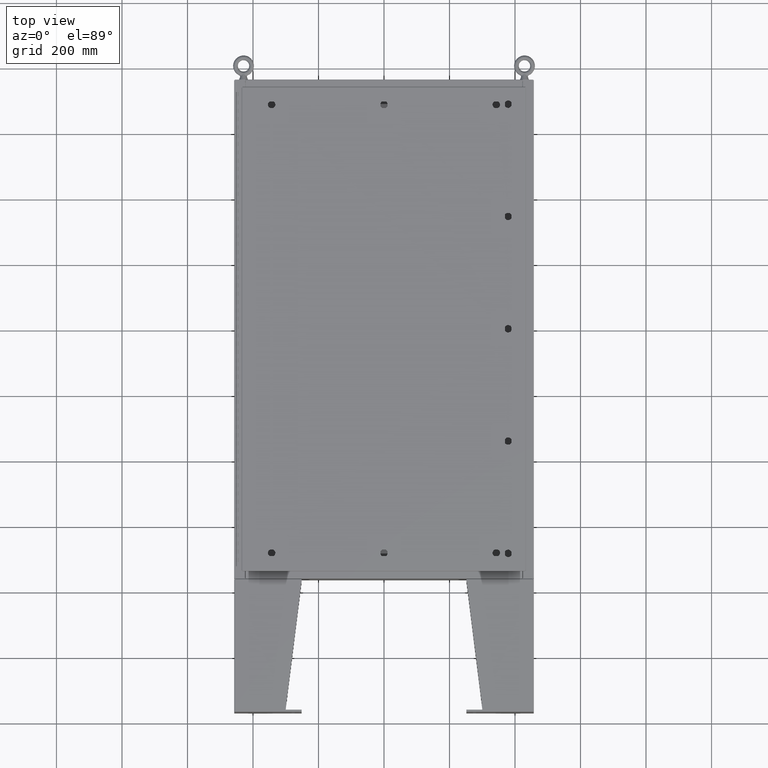
[diagram: clean part render]
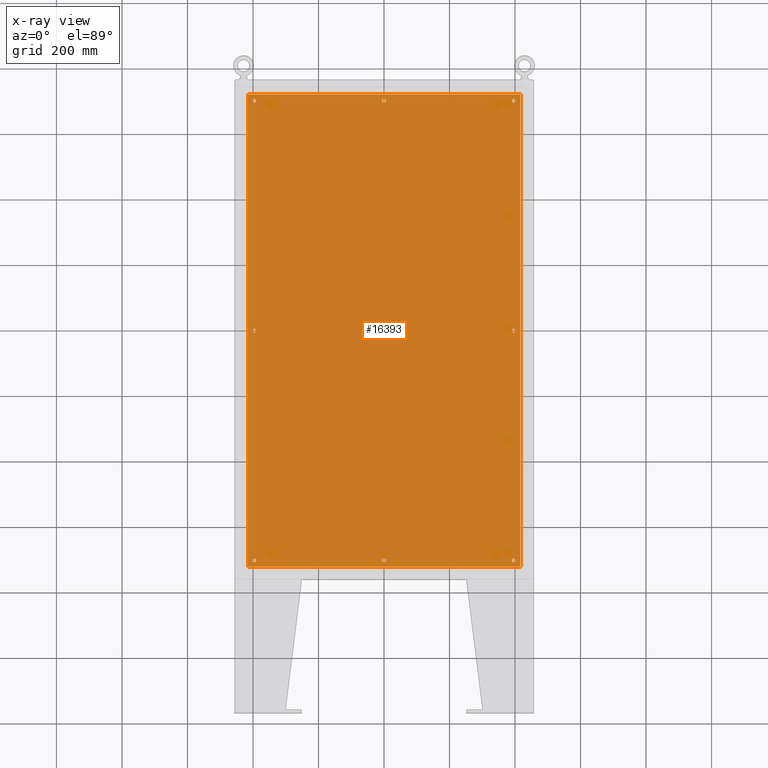
[diagram: x-ray — body ghosted, one internal face saturated and labeled with its STEP entity id]
A machine part, top view, then the same camera in x-ray: the body is ghosted and one INTERNAL B-rep face — a face not visible from any outside direction — is saturated and labeled: STEP entity #16393.
In plain terms, the highlighted planar face has unit normal (0, 0, -1).
Its self-contained STEP definition (entity closure, byte-faithful):
#662 = VECTOR ( 'NONE', #54191, 39.37007874015748100 ) ;
#672 = CARTESIAN_POINT ( 'NONE',  ( -15.62500000000000500, -8.298848852119578500E-016, -0.1039999999999999800 ) ) ;
#772 = ORIENTED_EDGE ( 'NONE', *, *, #24788, .T. ) ;
#809 = FACE_BOUND ( 'NONE', #51470, .T. ) ;
#816 = CARTESIAN_POINT ( 'NONE',  ( -15.62500000000001100, 27.62500000000000000, -0.1039999999999999800 ) ) ;
#1583 = DIRECTION ( 'NONE',  ( -0.0000000000000000000, -0.0000000000000000000, 1.000000000000000000 ) ) ;
#1635 = DIRECTION ( 'NONE',  ( -0.0000000000000000000, -0.0000000000000000000, 1.000000000000000000 ) ) ;
#2157 = CIRCLE ( 'NONE', #31022, 0.2500000000000008900 ) ;
#2828 = CIRCLE ( 'NONE', #59347, 0.2500000000000011700 ) ;
#3023 = EDGE_CURVE ( 'NONE', #16872, #14218, #12169, .T. ) ;
#3277 = CIRCLE ( 'NONE', #19943, 0.2499999999999998600 ) ;
#3540 = AXIS2_PLACEMENT_3D ( 'NONE', #45720, #16798, #50550 ) ;
#3827 = FACE_BOUND ( 'NONE', #6173, .T. ) ;
#4608 = CARTESIAN_POINT ( 'NONE',  ( 0.0000000000000000000, -27.62500000000000000, -0.1039999999999999800 ) ) ;
#4759 = DIRECTION ( 'NONE',  ( -1.000000000000000000, 0.0000000000000000000, 0.0000000000000000000 ) ) ;
#4900 = CARTESIAN_POINT ( 'NONE',  ( 16.50000000000000000, 28.38299999999999600, -0.1040000000000009400 ) ) ;
#4972 = ORIENTED_EDGE ( 'NONE', *, *, #23946, .T. ) ;
#5678 = DIRECTION ( 'NONE',  ( -1.000000000000000000, 0.0000000000000000000, 0.0000000000000000000 ) ) ;
#5688 = EDGE_CURVE ( 'NONE', #14273, #18177, #54907, .T. ) ;
#5845 = DIRECTION ( 'NONE',  ( -0.0000000000000000000, -0.0000000000000000000, 1.000000000000000000 ) ) ;
#6173 = EDGE_LOOP ( 'NONE', ( #15862, #31162 ) ) ;
#6723 = DIRECTION ( 'NONE',  ( -0.0000000000000000000, -0.0000000000000000000, 1.000000000000000000 ) ) ;
#7242 = CARTESIAN_POINT ( 'NONE',  ( 0.2500000000000011700, -27.62500000000000000, -0.1039999999999999800 ) ) ;
#7445 = CARTESIAN_POINT ( 'NONE',  ( -15.37500000000000900, 27.62500000000000000, -0.1039999999999999800 ) ) ;
#7605 = CARTESIAN_POINT ( 'NONE',  ( -15.87500000000000700, -27.62500000000000000, -0.1039999999999999800 ) ) ;
#7634 = CARTESIAN_POINT ( 'NONE',  ( -16.38299999999999900, -28.38300000000000600, -0.1040000000000009400 ) ) ;
#7797 = DIRECTION ( 'NONE',  ( -0.0000000000000000000, -0.0000000000000000000, 1.000000000000000000 ) ) ;
#8422 = ORIENTED_EDGE ( 'NONE', *, *, #23490, .F. ) ;
#8780 = CARTESIAN_POINT ( 'NONE',  ( -15.62500000000000900, -27.62500000000000000, -0.1039999999999999800 ) ) ;
#9344 = EDGE_CURVE ( 'NONE', #23143, #20246, #37283, .T. ) ;
#9752 = CARTESIAN_POINT ( 'NONE',  ( -15.62500000000000900, -27.62500000000000000, -0.1039999999999999800 ) ) ;
#9769 = DIRECTION ( 'NONE',  ( -1.000000000000000000, 0.0000000000000000000, 0.0000000000000000000 ) ) ;
#10150 = EDGE_LOOP ( 'NONE', ( #58895, #30513 ) ) ;
#10239 = CARTESIAN_POINT ( 'NONE',  ( 15.62500000000000900, 27.62500000000000000, -0.1039999999999999800 ) ) ;
#10624 = AXIS2_PLACEMENT_3D ( 'NONE', #30642, #1635, #35472 ) ;
#10870 = ORIENTED_EDGE ( 'NONE', *, *, #30177, .F. ) ;
#11026 = DIRECTION ( 'NONE',  ( 0.0000000000000000000, -1.000000000000000000, 0.0000000000000000000 ) ) ;
#11561 = VERTEX_POINT ( 'NONE', #11859 ) ;
#11589 = CARTESIAN_POINT ( 'NONE',  ( -0.2499999999999998600, 27.62500000000000000, -0.1039999999999999800 ) ) ;
#11644 = CIRCLE ( 'NONE', #18362, 0.2499999999999987000 ) ;
#11824 = EDGE_LOOP ( 'NONE', ( #43469, #8422, #50799, #10870 ) ) ;
#11859 = CARTESIAN_POINT ( 'NONE',  ( 15.87500000000000700, 2.997136362123522700E-015, -0.1039999999999999800 ) ) ;
#12169 = CIRCLE ( 'NONE', #35954, 0.2500000000000011700 ) ;
#12508 = DIRECTION ( 'NONE',  ( -0.0000000000000000000, -0.0000000000000000000, 1.000000000000000000 ) ) ;
#12732 = VERTEX_POINT ( 'NONE', #21962 ) ;
#13006 = VERTEX_POINT ( 'NONE', #11589 ) ;
#13181 = CARTESIAN_POINT ( 'NONE',  ( 15.62500000000000500, 2.997136362123522700E-015, -0.1039999999999999800 ) ) ;
#13670 = DIRECTION ( 'NONE',  ( -1.000000000000000000, 0.0000000000000000000, 0.0000000000000000000 ) ) ;
#13685 = FACE_BOUND ( 'NONE', #58583, .T. ) ;
#13781 = AXIS2_PLACEMENT_3D ( 'NONE', #816, #34664, #5678 ) ;
#14218 = VERTEX_POINT ( 'NONE', #7242 ) ;
#14273 = VERTEX_POINT ( 'NONE', #7605 ) ;
#14385 = DIRECTION ( 'NONE',  ( -1.000000000000000000, 0.0000000000000000000, 0.0000000000000000000 ) ) ;
#14661 = DIRECTION ( 'NONE',  ( -1.000000000000000000, 0.0000000000000000000, 0.0000000000000000000 ) ) ;
#15075 = VERTEX_POINT ( 'NONE', #17116 ) ;
#15134 = DIRECTION ( 'NONE',  ( -1.000000000000000000, 0.0000000000000000000, 0.0000000000000000000 ) ) ;
#15862 = ORIENTED_EDGE ( 'NONE', *, *, #54398, .T. ) ;
#16025 = EDGE_LOOP ( 'NONE', ( #32968, #51557 ) ) ;
#16393 = ADVANCED_FACE ( 'NONE', ( #52220, #28064, #53750, #3827, #39387, #26542, #13685, #809, #50723 ), #54057, .T. ) ;
#16798 = DIRECTION ( 'NONE',  ( -0.0000000000000000000, -0.0000000000000000000, 1.000000000000000000 ) ) ;
#16872 = VERTEX_POINT ( 'NONE', #61638 ) ;
#17116 = CARTESIAN_POINT ( 'NONE',  ( 15.87500000000000700, -27.62500000000000000, -0.1039999999999999800 ) ) ;
#17141 = DIRECTION ( 'NONE',  ( -0.0000000000000000000, -0.0000000000000000000, 1.000000000000000000 ) ) ;
#18061 = DIRECTION ( 'NONE',  ( -1.000000000000000000, 0.0000000000000000000, 0.0000000000000000000 ) ) ;
#18177 = VERTEX_POINT ( 'NONE', #22009 ) ;
#18362 = AXIS2_PLACEMENT_3D ( 'NONE', #46354, #22953, #51867 ) ;
#18451 = EDGE_CURVE ( 'NONE', #14218, #16872, #2828, .T. ) ;
#19484 = EDGE_CURVE ( 'NONE', #21623, #33466, #54366, .T. ) ;
#19740 = EDGE_CURVE ( 'NONE', #37278, #12732, #52052, .T. ) ;
#19943 = AXIS2_PLACEMENT_3D ( 'NONE', #22737, #7797, #58561 ) ;
#20246 = VERTEX_POINT ( 'NONE', #49715 ) ;
#20460 = CARTESIAN_POINT ( 'NONE',  ( 16.38299999999999900, -28.38300000000000600, -0.1040000000000009100 ) ) ;
#21623 = VERTEX_POINT ( 'NONE', #62081 ) ;
#21962 = CARTESIAN_POINT ( 'NONE',  ( -16.38299999999999900, 28.38299999999998800, -0.1040000000000009100 ) ) ;
#22009 = CARTESIAN_POINT ( 'NONE',  ( -15.37500000000000900, -27.62500000000000000, -0.1039999999999999800 ) ) ;
#22341 = EDGE_LOOP ( 'NONE', ( #44960, #59940 ) ) ;
#22737 = CARTESIAN_POINT ( 'NONE',  ( 0.0000000000000000000, 27.62500000000000000, -0.1039999999999999800 ) ) ;
#22953 = DIRECTION ( 'NONE',  ( -0.0000000000000000000, -0.0000000000000000000, 1.000000000000000000 ) ) ;
#23143 = VERTEX_POINT ( 'NONE', #58355 ) ;
#23490 = EDGE_CURVE ( 'NONE', #12732, #28458, #59331, .T. ) ;
#23946 = EDGE_CURVE ( 'NONE', #13006, #53177, #3277, .T. ) ;
#24631 = VERTEX_POINT ( 'NONE', #7445 ) ;
#24788 = EDGE_CURVE ( 'NONE', #20246, #23143, #11644, .T. ) ;
#24854 = VERTEX_POINT ( 'NONE', #41573 ) ;
#25272 = AXIS2_PLACEMENT_3D ( 'NONE', #10239, #44072, #15134 ) ;
#25893 = CARTESIAN_POINT ( 'NONE',  ( 0.0000000000000000000, 0.0000000000000000000, -0.1039999999999999800 ) ) ;
#26542 = FACE_BOUND ( 'NONE', #22341, .T. ) ;
#26593 = DIRECTION ( 'NONE',  ( -0.0000000000000000000, -0.0000000000000000000, 1.000000000000000000 ) ) ;
#26849 = CIRCLE ( 'NONE', #33154, 0.2500000000000008900 ) ;
#27877 = CARTESIAN_POINT ( 'NONE',  ( 15.37500000000000500, 3.027752532102206500E-015, -0.1039999999999999800 ) ) ;
#28064 = FACE_BOUND ( 'NONE', #62321, .T. ) ;
#28458 = VERTEX_POINT ( 'NONE', #7634 ) ;
#29124 = DIRECTION ( 'NONE',  ( 0.0000000000000000000, 0.0000000000000000000, -1.000000000000000000 ) ) ;
#30177 = EDGE_CURVE ( 'NONE', #38396, #37278, #45602, .T. ) ;
#30513 = ORIENTED_EDGE ( 'NONE', *, *, #5688, .T. ) ;
#30642 = CARTESIAN_POINT ( 'NONE',  ( 15.62500000000000900, -27.62500000000000000, -0.1039999999999999800 ) ) ;
#31022 = AXIS2_PLACEMENT_3D ( 'NONE', #13181, #46953, #18061 ) ;
#31111 = AXIS2_PLACEMENT_3D ( 'NONE', #9752, #43599, #14661 ) ;
#31162 = ORIENTED_EDGE ( 'NONE', *, *, #19484, .T. ) ;
#31387 = EDGE_LOOP ( 'NONE', ( #41790, #42724 ) ) ;
#31486 = CARTESIAN_POINT ( 'NONE',  ( 16.38299999999999900, 28.38299999999998800, -0.1040000000000009100 ) ) ;
#32119 = VECTOR ( 'NONE', #11026, 39.37007874015748100 ) ;
#32649 = EDGE_CURVE ( 'NONE', #11561, #40517, #2157, .T. ) ;
#32724 = VECTOR ( 'NONE', #35057, 39.37007874015748100 ) ;
#32968 = ORIENTED_EDGE ( 'NONE', *, *, #32649, .T. ) ;
#33154 = AXIS2_PLACEMENT_3D ( 'NONE', #46060, #17141, #50894 ) ;
#33327 = AXIS2_PLACEMENT_3D ( 'NONE', #25893, #29124, #42775 ) ;
#33349 = ORIENTED_EDGE ( 'NONE', *, *, #38580, .T. ) ;
#33466 = VERTEX_POINT ( 'NONE', #40350 ) ;
#33897 = AXIS2_PLACEMENT_3D ( 'NONE', #672, #1583, #9769 ) ;
#34458 = EDGE_CURVE ( 'NONE', #18177, #14273, #44416, .T. ) ;
#34664 = DIRECTION ( 'NONE',  ( -0.0000000000000000000, -0.0000000000000000000, 1.000000000000000000 ) ) ;
#34827 = CARTESIAN_POINT ( 'NONE',  ( 0.0000000000000000000, 27.62500000000000000, -0.1039999999999999800 ) ) ;
#34938 = CIRCLE ( 'NONE', #10624, 0.2499999999999987000 ) ;
#35057 = DIRECTION ( 'NONE',  ( 0.0000000000000000000, 1.000000000000000000, 0.0000000000000000000 ) ) ;
#35472 = DIRECTION ( 'NONE',  ( -1.000000000000000000, 0.0000000000000000000, 0.0000000000000000000 ) ) ;
#35701 = CARTESIAN_POINT ( 'NONE',  ( -15.62500000000001100, 27.62500000000000000, -0.1039999999999999800 ) ) ;
#35954 = AXIS2_PLACEMENT_3D ( 'NONE', #4608, #38442, #14385 ) ;
#37027 = EDGE_CURVE ( 'NONE', #24854, #24631, #37727, .T. ) ;
#37188 = EDGE_CURVE ( 'NONE', #24631, #24854, #43023, .T. ) ;
#37278 = VERTEX_POINT ( 'NONE', #31486 ) ;
#37283 = CIRCLE ( 'NONE', #25272, 0.2499999999999987000 ) ;
#37654 = CARTESIAN_POINT ( 'NONE',  ( 15.37500000000000900, -27.62500000000000000, -0.1039999999999999800 ) ) ;
#37727 = CIRCLE ( 'NONE', #13781, 0.2500000000000008900 ) ;
#37731 = AXIS2_PLACEMENT_3D ( 'NONE', #34827, #5845, #39690 ) ;
#38396 = VERTEX_POINT ( 'NONE', #47502 ) ;
#38442 = DIRECTION ( 'NONE',  ( -0.0000000000000000000, -0.0000000000000000000, 1.000000000000000000 ) ) ;
#38580 = EDGE_CURVE ( 'NONE', #53177, #13006, #50478, .T. ) ;
#39302 = LINE ( 'NONE', #41595, #49110 ) ;
#39387 = FACE_BOUND ( 'NONE', #10150, .T. ) ;
#39690 = DIRECTION ( 'NONE',  ( -1.000000000000000000, 0.0000000000000000000, 0.0000000000000000000 ) ) ;
#40295 = AXIS2_PLACEMENT_3D ( 'NONE', #55534, #26593, #60380 ) ;
#40350 = CARTESIAN_POINT ( 'NONE',  ( -15.37500000000000500, -8.298848852119578500E-016, -0.1039999999999999800 ) ) ;
#40517 = VERTEX_POINT ( 'NONE', #27877 ) ;
#40578 = DIRECTION ( 'NONE',  ( -1.000000000000000000, 0.0000000000000000000, 0.0000000000000000000 ) ) ;
#41573 = CARTESIAN_POINT ( 'NONE',  ( -15.87500000000001100, 27.62500000000000000, -0.1039999999999999800 ) ) ;
#41595 = CARTESIAN_POINT ( 'NONE',  ( -16.50000000000000000, -28.38300000000000600, -0.1040000000000009400 ) ) ;
#41790 = ORIENTED_EDGE ( 'NONE', *, *, #18451, .T. ) ;
#42633 = DIRECTION ( 'NONE',  ( -0.0000000000000000000, -0.0000000000000000000, 1.000000000000000000 ) ) ;
#42724 = ORIENTED_EDGE ( 'NONE', *, *, #3023, .T. ) ;
#42775 = DIRECTION ( 'NONE',  ( -1.000000000000000000, 0.0000000000000000000, -0.0000000000000000000 ) ) ;
#43023 = CIRCLE ( 'NONE', #49397, 0.2500000000000008900 ) ;
#43353 = AXIS2_PLACEMENT_3D ( 'NONE', #8780, #42633, #13670 ) ;
#43469 = ORIENTED_EDGE ( 'NONE', *, *, #60311, .F. ) ;
#43599 = DIRECTION ( 'NONE',  ( -0.0000000000000000000, -0.0000000000000000000, 1.000000000000000000 ) ) ;
#44012 = EDGE_CURVE ( 'NONE', #47760, #15075, #47265, .T. ) ;
#44072 = DIRECTION ( 'NONE',  ( -0.0000000000000000000, -0.0000000000000000000, 1.000000000000000000 ) ) ;
#44416 = CIRCLE ( 'NONE', #31111, 0.2499999999999987000 ) ;
#44960 = ORIENTED_EDGE ( 'NONE', *, *, #46925, .T. ) ;
#45602 = LINE ( 'NONE', #20460, #32724 ) ;
#45720 = CARTESIAN_POINT ( 'NONE',  ( 15.62500000000000900, -27.62500000000000000, -0.1039999999999999800 ) ) ;
#46060 = CARTESIAN_POINT ( 'NONE',  ( -15.62500000000000500, -8.298848852119578500E-016, -0.1039999999999999800 ) ) ;
#46354 = CARTESIAN_POINT ( 'NONE',  ( 15.62500000000000900, 27.62500000000000000, -0.1039999999999999800 ) ) ;
#46454 = DIRECTION ( 'NONE',  ( 1.000000000000000000, -0.0000000000000000000, -0.0000000000000000000 ) ) ;
#46925 = EDGE_CURVE ( 'NONE', #15075, #47760, #34938, .T. ) ;
#46953 = DIRECTION ( 'NONE',  ( -0.0000000000000000000, -0.0000000000000000000, 1.000000000000000000 ) ) ;
#47265 = CIRCLE ( 'NONE', #3540, 0.2499999999999987000 ) ;
#47502 = CARTESIAN_POINT ( 'NONE',  ( 16.38299999999999900, -28.38300000000000600, -0.1040000000000009100 ) ) ;
#47760 = VERTEX_POINT ( 'NONE', #37654 ) ;
#49110 = VECTOR ( 'NONE', #46454, 39.37007874015748100 ) ;
#49397 = AXIS2_PLACEMENT_3D ( 'NONE', #35701, #6723, #40578 ) ;
#49715 = CARTESIAN_POINT ( 'NONE',  ( 15.37500000000000900, 27.62500000000000000, -0.1039999999999999800 ) ) ;
#49767 = ORIENTED_EDGE ( 'NONE', *, *, #9344, .T. ) ;
#49841 = CARTESIAN_POINT ( 'NONE',  ( -16.38299999999999900, 28.38299999999998800, -0.1040000000000009100 ) ) ;
#50478 = CIRCLE ( 'NONE', #37731, 0.2499999999999998600 ) ;
#50550 = DIRECTION ( 'NONE',  ( -1.000000000000000000, 0.0000000000000000000, 0.0000000000000000000 ) ) ;
#50723 = FACE_OUTER_BOUND ( 'NONE', #11824, .T. ) ;
#50799 = ORIENTED_EDGE ( 'NONE', *, *, #19740, .F. ) ;
#50894 = DIRECTION ( 'NONE',  ( -1.000000000000000000, 0.0000000000000000000, 0.0000000000000000000 ) ) ;
#51470 = EDGE_LOOP ( 'NONE', ( #59639, #56646 ) ) ;
#51557 = ORIENTED_EDGE ( 'NONE', *, *, #60227, .T. ) ;
#51867 = DIRECTION ( 'NONE',  ( -1.000000000000000000, 0.0000000000000000000, 0.0000000000000000000 ) ) ;
#52052 = LINE ( 'NONE', #4900, #662 ) ;
#52220 = FACE_BOUND ( 'NONE', #31387, .T. ) ;
#53177 = VERTEX_POINT ( 'NONE', #57570 ) ;
#53668 = CIRCLE ( 'NONE', #40295, 0.2500000000000008900 ) ;
#53750 = FACE_BOUND ( 'NONE', #16025, .T. ) ;
#54057 = PLANE ( 'NONE',  #33327 ) ;
#54191 = DIRECTION ( 'NONE',  ( -1.000000000000000000, -0.0000000000000000000, -0.0000000000000000000 ) ) ;
#54366 = CIRCLE ( 'NONE', #33897, 0.2500000000000008900 ) ;
#54398 = EDGE_CURVE ( 'NONE', #33466, #21623, #26849, .T. ) ;
#54907 = CIRCLE ( 'NONE', #43353, 0.2499999999999987000 ) ;
#55534 = CARTESIAN_POINT ( 'NONE',  ( 15.62500000000000500, 2.997136362123522700E-015, -0.1039999999999999800 ) ) ;
#56646 = ORIENTED_EDGE ( 'NONE', *, *, #37027, .T. ) ;
#57126 = CARTESIAN_POINT ( 'NONE',  ( 0.0000000000000000000, -27.62500000000000000, -0.1039999999999999800 ) ) ;
#57570 = CARTESIAN_POINT ( 'NONE',  ( 0.2499999999999998600, 27.62500000000000000, -0.1039999999999999800 ) ) ;
#58355 = CARTESIAN_POINT ( 'NONE',  ( 15.87500000000000700, 27.62500000000000000, -0.1039999999999999800 ) ) ;
#58561 = DIRECTION ( 'NONE',  ( -1.000000000000000000, 0.0000000000000000000, 0.0000000000000000000 ) ) ;
#58583 = EDGE_LOOP ( 'NONE', ( #49767, #772 ) ) ;
#58895 = ORIENTED_EDGE ( 'NONE', *, *, #34458, .T. ) ;
#59331 = LINE ( 'NONE', #49841, #32119 ) ;
#59347 = AXIS2_PLACEMENT_3D ( 'NONE', #57126, #12508, #4759 ) ;
#59639 = ORIENTED_EDGE ( 'NONE', *, *, #37188, .T. ) ;
#59940 = ORIENTED_EDGE ( 'NONE', *, *, #44012, .T. ) ;
#60227 = EDGE_CURVE ( 'NONE', #40517, #11561, #53668, .T. ) ;
#60311 = EDGE_CURVE ( 'NONE', #28458, #38396, #39302, .T. ) ;
#60380 = DIRECTION ( 'NONE',  ( -1.000000000000000000, 0.0000000000000000000, 0.0000000000000000000 ) ) ;
#61638 = CARTESIAN_POINT ( 'NONE',  ( -0.2500000000000011700, -27.62500000000000000, -0.1039999999999999800 ) ) ;
#62081 = CARTESIAN_POINT ( 'NONE',  ( -15.87500000000000700, -7.992687152332741600E-016, -0.1039999999999999800 ) ) ;
#62321 = EDGE_LOOP ( 'NONE', ( #33349, #4972 ) ) ;